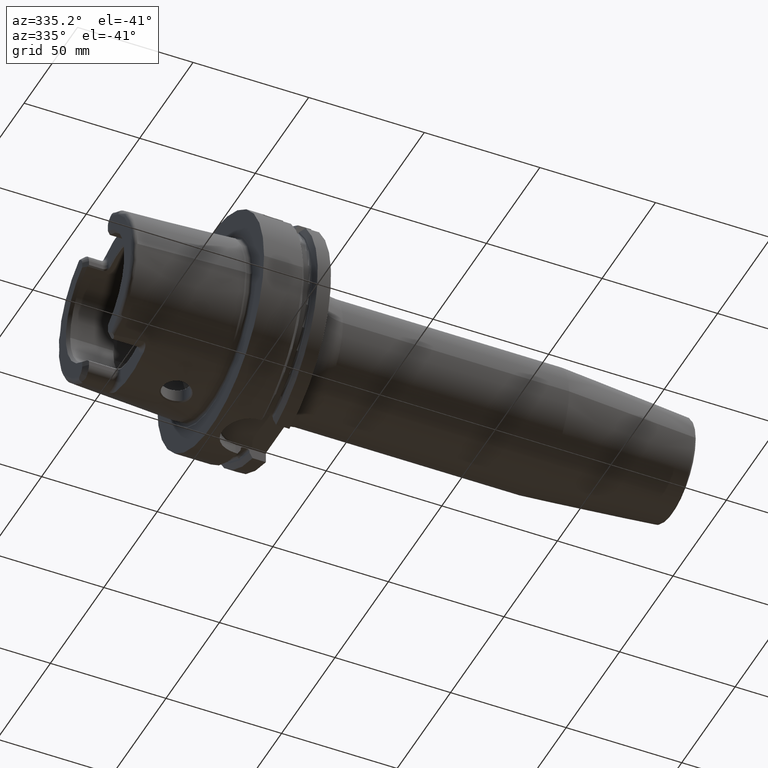
[diagram: clean part render]
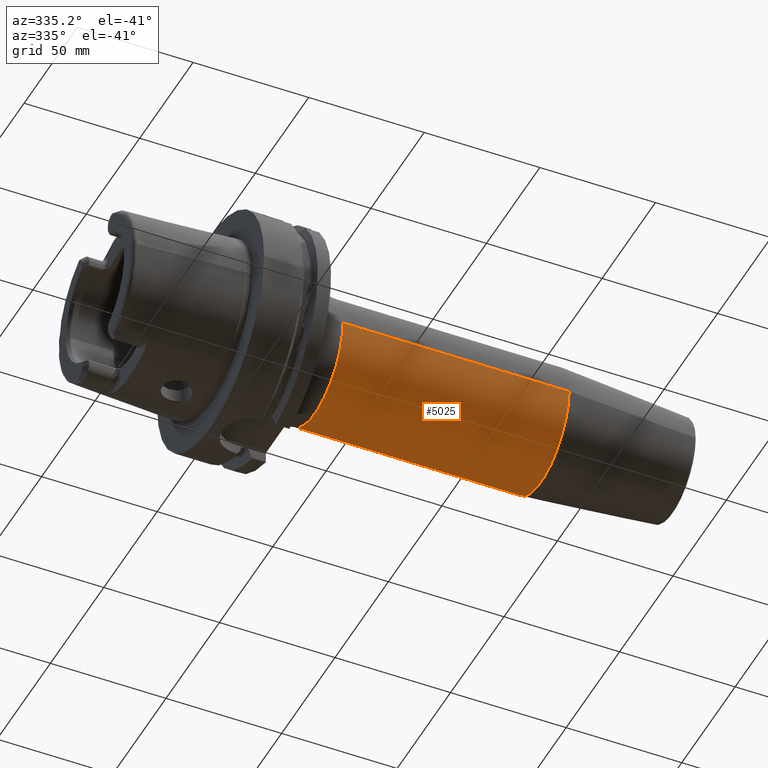
[diagram: same view with one face highlighted and labeled with its STEP entity id]
A machine part, auxiliary view. The second image highlights one B-rep face of the part: STEP entity #5025.
In plain terms, the highlighted cylindrical surface (partial cylindrical patch) has radius 26.5 mm, axis along (1, 0, 0).
Its self-contained STEP definition (entity closure, byte-faithful):
#1830=CARTESIAN_POINT('',(4.5E1,0.E0,0.E0));
#1831=DIRECTION('',(1.E0,0.E0,0.E0));
#1832=DIRECTION('',(0.E0,-1.E0,0.E0));
#1833=AXIS2_PLACEMENT_3D('',#1830,#1831,#1832);
#1835=DIRECTION('',(-1.E0,0.E0,0.E0));
#1836=VECTOR('',#1835,9.782207868721E1);
#1837=CARTESIAN_POINT('',(1.428220786872E2,-2.65E1,0.E0));
#1838=LINE('',#1837,#1836);
#1839=CARTESIAN_POINT('',(1.428220786872E2,0.E0,0.E0));
#1840=DIRECTION('',(-1.E0,0.E0,0.E0));
#1841=DIRECTION('',(0.E0,1.E0,0.E0));
#1842=AXIS2_PLACEMENT_3D('',#1839,#1840,#1841);
#1844=DIRECTION('',(-1.E0,0.E0,0.E0));
#1845=VECTOR('',#1844,9.782207868721E1);
#1846=CARTESIAN_POINT('',(1.428220786872E2,2.65E1,0.E0));
#1847=LINE('',#1846,#1845);
#3129=CARTESIAN_POINT('',(1.428220786872E2,2.65E1,0.E0));
#3130=CARTESIAN_POINT('',(1.428220786872E2,-2.65E1,0.E0));
#3131=VERTEX_POINT('',#3129);
#3132=VERTEX_POINT('',#3130);
#3141=CARTESIAN_POINT('',(4.5E1,-2.65E1,0.E0));
#3142=CARTESIAN_POINT('',(4.5E1,2.65E1,0.E0));
#3143=VERTEX_POINT('',#3141);
#3144=VERTEX_POINT('',#3142);
#5013=CARTESIAN_POINT('',(2.045E1,0.E0,0.E0));
#5014=DIRECTION('',(1.E0,0.E0,0.E0));
#5015=DIRECTION('',(0.E0,-1.E0,0.E0));
#5016=AXIS2_PLACEMENT_3D('',#5013,#5014,#5015);
#5017=CYLINDRICAL_SURFACE('',#5016,2.65E1);
#5018=ORIENTED_EDGE('',*,*,#4978,.F.);
#5019=ORIENTED_EDGE('',*,*,#5008,.F.);
#5021=ORIENTED_EDGE('',*,*,#5020,.F.);
#5022=ORIENTED_EDGE('',*,*,#5004,.T.);
#5023=EDGE_LOOP('',(#5018,#5019,#5021,#5022));
#5024=FACE_OUTER_BOUND('',#5023,.F.);
#5025=ADVANCED_FACE('',(#5024),#5017,.T.);
#1834=CIRCLE('',#1833,2.65E1);
#1843=CIRCLE('',#1842,2.65E1);
#4978=EDGE_CURVE('',#3143,#3144,#1834,.T.);
#5004=EDGE_CURVE('',#3131,#3144,#1847,.T.);
#5008=EDGE_CURVE('',#3132,#3143,#1838,.T.);
#5020=EDGE_CURVE('',#3131,#3132,#1843,.T.);